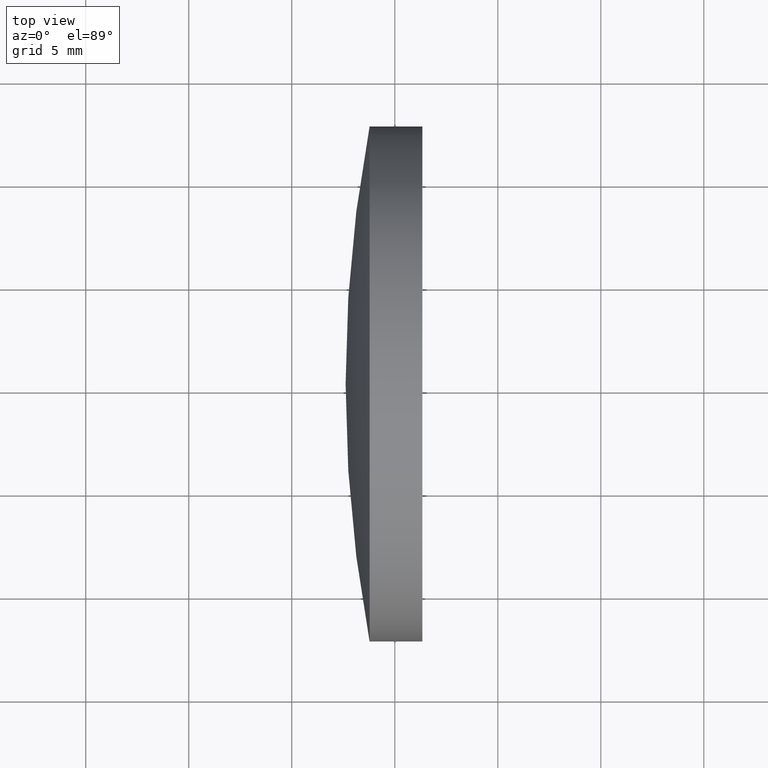
[diagram: clean part render]
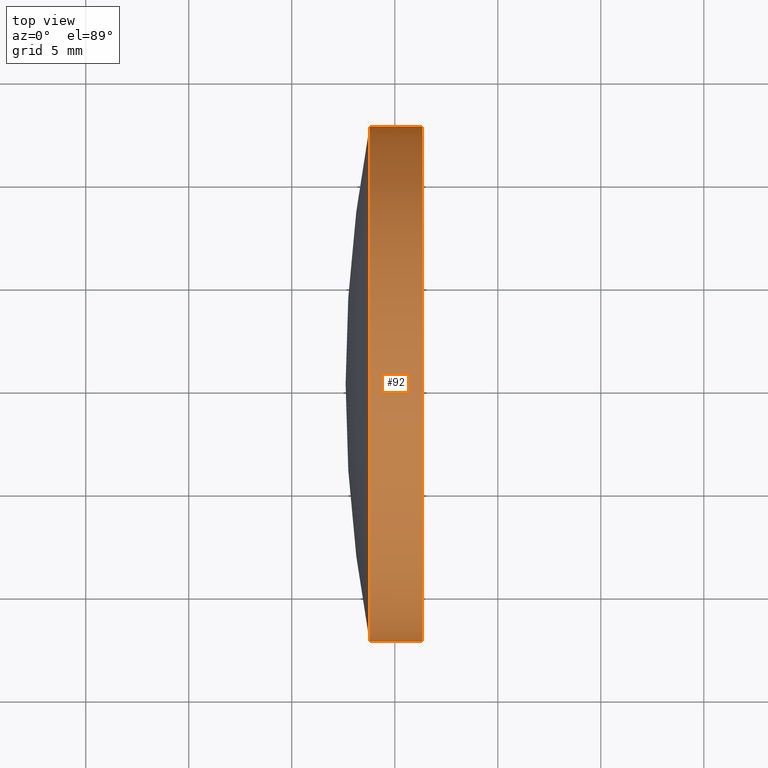
[diagram: same view with one face highlighted and labeled with its STEP entity id]
A machine part, top view. The second image highlights one B-rep face of the part: STEP entity #92.
In plain terms, the highlighted cylindrical surface (partial cylindrical patch) has radius 12.5 mm, axis along (-1, -0, -0).
Its self-contained STEP definition (entity closure, byte-faithful):
#4 = DIRECTION ( 'NONE',  ( 1.110223024625159300E-015, -1.000000000000000000, 0.0000000000000000000 ) ) ;
#8 = AXIS2_PLACEMENT_3D ( 'NONE', #71, #177, #96 ) ;
#10 = ORIENTED_EDGE ( 'NONE', *, *, #95, .F. ) ;
#20 = VECTOR ( 'NONE', #138, 1000.000000000000000 ) ;
#21 = CIRCLE ( 'NONE', #87, 12.49999999999999100 ) ;
#22 = CARTESIAN_POINT ( 'NONE',  ( 123.7761884081259000, 65.21684047094032600, 0.0000000000000000000 ) ) ;
#26 = AXIS2_PLACEMENT_3D ( 'NONE', #30, #145, #4 ) ;
#30 = CARTESIAN_POINT ( 'NONE',  ( 115.9444912979631700, 65.21684047094032600, 0.0000000000000000000 ) ) ;
#31 = CARTESIAN_POINT ( 'NONE',  ( 126.3396053945547700, 52.71684047094021300, -1.530808498934187000E-015 ) ) ;
#39 = EDGE_CURVE ( 'NONE', #100, #84, #146, .T. ) ;
#48 = CARTESIAN_POINT ( 'NONE',  ( 123.7761884081258800, 77.71684047094031200, 0.0000000000000000000 ) ) ;
#55 = LINE ( 'NONE', #171, #20 ) ;
#59 = VECTOR ( 'NONE', #168, 1000.000000000000000 ) ;
#69 = CYLINDRICAL_SURFACE ( 'NONE', #26, 12.49999999999997000 ) ;
#71 = CARTESIAN_POINT ( 'NONE',  ( 126.3396053945547700, 65.21684047094034000, 0.0000000000000000000 ) ) ;
#72 = EDGE_LOOP ( 'NONE', ( #80, #125, #10, #162 ) ) ;
#80 = ORIENTED_EDGE ( 'NONE', *, *, #39, .T. ) ;
#84 = VERTEX_POINT ( 'NONE', #148 ) ;
#87 = AXIS2_PLACEMENT_3D ( 'NONE', #22, #131, #185 ) ;
#92 = ADVANCED_FACE ( 'NONE', ( #159 ), #69, .T. ) ;
#95 = EDGE_CURVE ( 'NONE', #129, #106, #21, .T. ) ;
#96 = DIRECTION ( 'NONE',  ( 0.0000000000000000000, -1.000000000000000000, 0.0000000000000000000 ) ) ;
#100 = VERTEX_POINT ( 'NONE', #31 ) ;
#106 = VERTEX_POINT ( 'NONE', #48 ) ;
#121 = CARTESIAN_POINT ( 'NONE',  ( 115.9444912979631500, 77.71684047094029800, 1.530808498934187800E-015 ) ) ;
#125 = ORIENTED_EDGE ( 'NONE', *, *, #186, .T. ) ;
#129 = VERTEX_POINT ( 'NONE', #130 ) ;
#130 = CARTESIAN_POINT ( 'NONE',  ( 123.7761884081259000, 52.71684047094031200, -1.530808498934189900E-015 ) ) ;
#131 = DIRECTION ( 'NONE',  ( -1.000000000000000000, -6.937607244762875000E-016, -0.0000000000000000000 ) ) ;
#137 = LINE ( 'NONE', #121, #59 ) ;
#138 = DIRECTION ( 'NONE',  ( -1.000000000000000000, -6.937607244762875000E-016, -0.0000000000000000000 ) ) ;
#145 = DIRECTION ( 'NONE',  ( -1.000000000000000000, -6.937607244762875000E-016, -0.0000000000000000000 ) ) ;
#146 = CIRCLE ( 'NONE', #8, 12.49999999999994800 ) ;
#148 = CARTESIAN_POINT ( 'NONE',  ( 126.3396053945547700, 77.71684047094029800, 0.0000000000000000000 ) ) ;
#159 = FACE_OUTER_BOUND ( 'NONE', #72, .T. ) ;
#162 = ORIENTED_EDGE ( 'NONE', *, *, #189, .F. ) ;
#168 = DIRECTION ( 'NONE',  ( -1.000000000000000000, -6.937607244762875000E-016, -0.0000000000000000000 ) ) ;
#171 = CARTESIAN_POINT ( 'NONE',  ( 115.9444912979631800, 52.71684047094035500, 0.0000000000000000000 ) ) ;
#177 = DIRECTION ( 'NONE',  ( -1.000000000000000000, -6.937607244762875000E-016, -0.0000000000000000000 ) ) ;
#185 = DIRECTION ( 'NONE',  ( 1.110223024625157300E-015, -1.000000000000000000, 0.0000000000000000000 ) ) ;
#186 = EDGE_CURVE ( 'NONE', #84, #106, #137, .T. ) ;
#189 = EDGE_CURVE ( 'NONE', #100, #129, #55, .T. ) ;